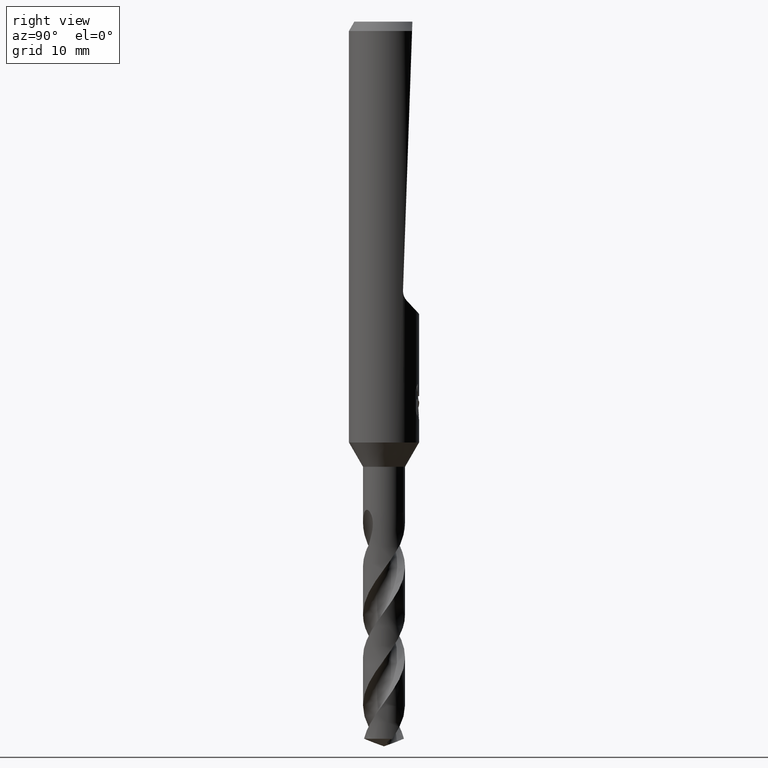
[diagram: clean part render]
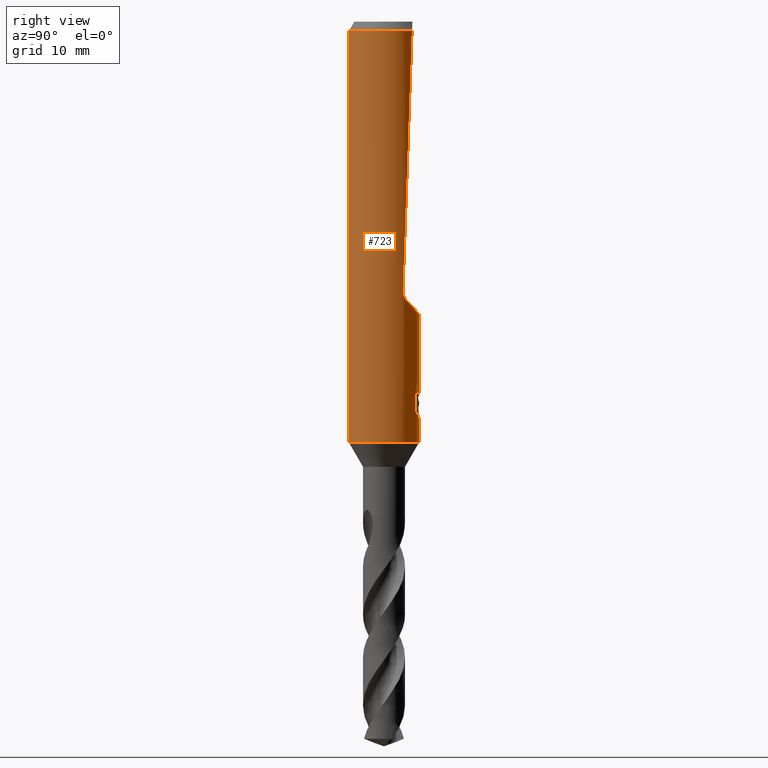
[diagram: same view with one face highlighted and labeled with its STEP entity id]
A machine part, right view. The second image highlights one B-rep face of the part: STEP entity #723.
In plain terms, the highlighted cylindrical surface (edge-blend (fillet) strip) has radius 3 mm, axis along (-0, -0, 1).
Its self-contained STEP definition (entity closure, byte-faithful):
#293=EDGE_CURVE('',#601,#735,#825,.T.);
#295=EDGE_CURVE('',#685,#455,#827,.T.);
#381=VERTEX_POINT('',#926);
#415=EDGE_CURVE('',#735,#611,#963,.T.);
#421=EDGE_CURVE('',#455,#493,#969,.T.);
#455=VERTEX_POINT('',#1008);
#493=VERTEX_POINT('',#1049);
#549=EDGE_CURVE('',#611,#559,#1108,.T.);
#559=VERTEX_POINT('',#1119);
#569=EDGE_CURVE('',#381,#719,#1130,.T.);
#601=VERTEX_POINT('',#1163);
#607=VERTEX_POINT('',#1169);
#611=VERTEX_POINT('',#1173);
#619=EDGE_CURVE('',#721,#739,#1181,.T.);
#631=EDGE_CURVE('',#559,#751,#1194,.T.);
#679=EDGE_CURVE('',#381,#713,#1248,.T.);
#685=VERTEX_POINT('',#1255);
#687=EDGE_CURVE('',#739,#761,#1257,.T.);
#713=VERTEX_POINT('',#1284);
#715=EDGE_CURVE('',#761,#685,#1286,.T.);
#719=VERTEX_POINT('',#1290);
#721=VERTEX_POINT('',#1292);
#723=ADVANCED_FACE('',(#1294),#1295,.T.);
#725=EDGE_CURVE('',#713,#607,#1297,.T.);
#735=VERTEX_POINT('',#1307);
#737=EDGE_CURVE('',#607,#751,#1309,.T.);
#739=VERTEX_POINT('',#1311);
#751=VERTEX_POINT('',#1325);
#761=VERTEX_POINT('',#1336);
#793=EDGE_CURVE('',#601,#493,#1371,.T.);
#799=EDGE_CURVE('',#719,#721,#1377,.T.);
#825=ELLIPSE('',#1978,4.39883755691887,3.0);
#827=B_SPLINE_CURVE_WITH_KNOTS('',3,(#1981,#1982,#1983,#1984,#1985,#1986,#1987,#1988),.UNSPECIFIED.,.F.,.F.,(4,2,2,4),(0.629580638580865,1.25916127716173,1.57221094126725,1.88526060537277),.UNSPECIFIED.);
#926=CARTESIAN_POINT('',(-2.46407913303377E-016,3.0,-34.0310253601033));
#963=B_SPLINE_CURVE_WITH_KNOTS('',3,(#2801,#2802,#2803,#2804,#2805,#2806,#2807,#2808,#2809,#2810,#2811,#2812),.UNSPECIFIED.,.F.,.F.,(4,2,2,2,2,4),(9.65639576015631,9.92366870863066,10.190941657105,10.4582146055794,10.7254875540537,10.9927605025281),.UNSPECIFIED.);
#969=B_SPLINE_CURVE_WITH_KNOTS('',3,(#2822,#2823,#2824,#2825,#2826,#2827,#2828,#2829,#2830,#2831,#2832,#2833,#2834,#2835,#2836,#2837,#2838,#2839,#2840,#2841,#2842,#2843,#2844,#2845,#2846,#2847,#2848),.UNSPECIFIED.,.F.,.F.,(4,2,3,2,2,2,2,2,2,2,2,2,4),(-0.54422824842136,-0.27211412421068,0.0,0.272114124210678,0.544228248421357,0.817906359646673,1.09158447087199,1.36255924571499,1.63353402055798,1.90530456554772,2.17707511053746,2.4488456555272,2.72061620051693),.UNSPECIFIED.);
#1008=CARTESIAN_POINT('',(0.799431726384364,2.89152363207533,-31.000000276873));
#1049=CARTESIAN_POINT('',(-1.20768269592175E-015,3.0,-32.0232688117743));
#1108=ELLIPSE('',#3501,85.9611250435315,3.0);
#1119=CARTESIAN_POINT('',(1.79915003951659,2.40063723525806,-0.799999999999997));
#1130=B_SPLINE_CURVE_WITH_KNOTS('',3,(#3559,#3560,#3561,#3562,#3563,#3564,#3565,#3566,#3567,#3568,#3569,#3570,#3571,#3572,#3573,#3574),.UNSPECIFIED.,.F.,.F.,(4,2,2,2,2,2,2,4),(5.66023402257373,6.29060333517104,6.60504483258975,6.91948633000846,7.23392782742717,7.54836932484587,7.86141901111221,8.17446869737855),.UNSPECIFIED.);
#1163=CARTESIAN_POINT('',(-3.67381906146713E-016,3.0,-25.0009117563346));
#1169=CARTESIAN_POINT('',(3.67381906146713E-016,-3.0,-36.0));
#1173=CARTESIAN_POINT('',(2.52177371746177,1.62500994394466,-23.0110595671924));
#1181=LINE('',#3713,#3714);
#1194=CIRCLE('',#3820,3.0);
#1248=LINE('',#4521,#4522);
#1255=CARTESIAN_POINT('',(1.33721006514658,2.68549236485057,-31.5150484364821));
#1257=B_SPLINE_CURVE_WITH_KNOTS('',3,(#4532,#4533,#4534,#4535,#4536,#4537,#4538,#4539),.UNSPECIFIED.,.F.,.F.,(4,2,2,4),(8.17446522132897,8.48751487521068,8.80056452909238,9.43014514523744),.UNSPECIFIED.);
#1284=CARTESIAN_POINT('',(0.0,3.0,-36.0));
#1286=LINE('',#4690,#4691);
#1290=CARTESIAN_POINT('',(0.29010312703583,2.98594041730307,-33.9998328990228));
#1292=CARTESIAN_POINT('',(0.873560781758957,2.86999852971612,-32.3198931596091));
#1294=FACE_OUTER_BOUND('',#4791,.T.);
#1295=CYLINDRICAL_SURFACE('',#4792,3.0);
#1297=CIRCLE('',#4795,3.0);
#1307=CARTESIAN_POINT('',(2.2826599132014,1.94665449442457,-23.8713369953104));
#1309=LINE('',#4833,#4834);
#1311=CARTESIAN_POINT('',(0.873560781758956,2.86999852971612,-33.7587351791531));
#1325=CARTESIAN_POINT('',(3.67381906146713E-016,-3.0,-0.799999999999997));
#1336=CARTESIAN_POINT('',(1.33721006514658,2.68549236485056,-33.2901657003257));
#1371=LINE('',#5359,#5360);
#1377=ELLIPSE('',#5369,9.14398372010932,3.0);
#1978=AXIS2_PLACEMENT_3D('',#5380,#5381,#5382);
#1981=CARTESIAN_POINT('',(1.47371594887933,2.61307506628086,-31.7730763684241));
#1982=CARTESIAN_POINT('',(1.38997410067862,2.66030349611674,-31.5732652606136));
#1983=CARTESIAN_POINT('',(1.2654392594963,2.72440179761724,-31.3929794688919));
#1984=CARTESIAN_POINT('',(1.05168354029617,2.81066216411606,-31.1794481382038));
#1985=CARTESIAN_POINT('',(0.971352579549231,2.83988055521709,-31.1125077441098));
#1986=CARTESIAN_POINT('',(0.795685568183073,2.89401656493242,-30.9938021282019));
#1987=CARTESIAN_POINT('',(0.700343019183212,2.91889351702519,-30.9420279807093));
#1988=CARTESIAN_POINT('',(0.600330681290245,2.93932017192779,-30.9001776926585));
#2801=CARTESIAN_POINT('',(2.1993251643641,2.0403354678569,-23.961472197729));
#2802=CARTESIAN_POINT('',(2.25053184097059,1.98513859743127,-23.9138446323197));
#2803=CARTESIAN_POINT('',(2.29788287508865,1.92976722949031,-23.8571075060433));
#2804=CARTESIAN_POINT('',(2.37970549766852,1.82791383934016,-23.7268045582116));
#2805=CARTESIAN_POINT('',(2.41423408090567,1.78148417509052,-23.6532336111416));
#2806=CARTESIAN_POINT('',(2.46888600291622,1.7049378084188,-23.4943584779312));
#2807=CARTESIAN_POINT('',(2.48916425834033,1.67470764776135,-23.408819725842));
#2808=CARTESIAN_POINT('',(2.51582947593657,1.63437647323784,-23.2326537242643));
#2809=CARTESIAN_POINT('',(2.52224462272648,1.62427893636757,-23.1420299460602));
#2810=CARTESIAN_POINT('',(2.52224462272648,1.62427893636757,-22.9638479804106));
#2811=CARTESIAN_POINT('',(2.51582947593657,1.63437647323784,-22.8732242022064));
#2812=CARTESIAN_POINT('',(2.50249686713845,1.65454206049959,-22.7851412014176));
#2822=CARTESIAN_POINT('',(0.665621182276714,2.92522622060321,-30.8140957881762));
#2823=CARTESIAN_POINT('',(0.728850563417096,2.91083867849353,-30.877518087557));
#2824=CARTESIAN_POINT('',(0.783900459387161,2.89602337967411,-30.9578702196133));
#2825=CARTESIAN_POINT('',(0.857188692916628,2.87518328740958,-31.1345580124299));
#2826=CARTESIAN_POINT('',(0.875400981188567,2.86943777108584,-31.2309373045166));
#2827=CARTESIAN_POINT('',(0.875400981188567,2.86943777108584,-31.3216420125868));
#2828=CARTESIAN_POINT('',(0.875400981188567,2.86943777108584,-31.412346720657));
#2829=CARTESIAN_POINT('',(0.857188692916629,2.87518328740958,-31.5087260127437));
#2830=CARTESIAN_POINT('',(0.783900459387161,2.89602337967411,-31.6854138055602));
#2831=CARTESIAN_POINT('',(0.728850563417096,2.91083867849353,-31.7657659376165));
#2832=CARTESIAN_POINT('',(0.60202838769231,2.93969645569731,-31.8929750586276));
#2833=CARTESIAN_POINT('',(0.5214778595293,2.95568533572518,-31.9483797636259));
#2834=CARTESIAN_POINT('',(0.34429909105015,2.98152194310932,-32.0221641076746));
#2835=CARTESIAN_POINT('',(0.247628172090375,2.99115403786358,-32.0405166027747));
#2836=CARTESIAN_POINT('',(0.0663244946631877,3.00062654348629,-32.0405166027747));
#2837=CARTESIAN_POINT('',(-0.0299285908853379,3.00115720326599,-32.0224875186921));
#2838=CARTESIAN_POINT('',(-0.206881310600538,2.99416773126077,-31.949244373347));
#2839=CARTESIAN_POINT('',(-0.287593937381961,2.98687212067831,-31.8940404490632));
#2840=CARTESIAN_POINT('',(-0.415200117492864,2.97182576996222,-31.7666805419979));
#2841=CARTESIAN_POINT('',(-0.470604049431396,2.96309385107775,-31.6859121102136));
#2842=CARTESIAN_POINT('',(-0.544183869965539,2.95046729924835,-31.5086992019516));
#2843=CARTESIAN_POINT('',(-0.562348199187247,2.94682278104247,-31.41223219425));
#2844=CARTESIAN_POINT('',(-0.562348199187247,2.94682278104247,-31.2310518309235));
#2845=CARTESIAN_POINT('',(-0.54418386996554,2.95046729924835,-31.134584823222));
#2846=CARTESIAN_POINT('',(-0.4706040494314,2.96309385107775,-30.95737191496));
#2847=CARTESIAN_POINT('',(-0.415200117492863,2.97182576996222,-30.8766034831756));
#2848=CARTESIAN_POINT('',(-0.351303479704285,2.97935997575782,-30.812830162452));
#3501=AXIS2_PLACEMENT_3D('',#5742,#5743,#5744);
#3559=CARTESIAN_POINT('',(-1.53050642192579,2.58022287650581,-33.0319811255889));
#3560=CARTESIAN_POINT('',(-1.44691631248335,2.62980577312329,-33.2314887010961));
#3561=CARTESIAN_POINT('',(-1.32276760444366,2.69707077181617,-33.4113258593841));
#3562=CARTESIAN_POINT('',(-1.10973155101076,2.78826898930335,-33.6245951706909));
#3563=CARTESIAN_POINT('',(-1.02948996220254,2.81934349084513,-33.6916117853674));
#3564=CARTESIAN_POINT('',(-0.853932698223484,2.87738531454781,-33.8105216600777));
#3565=CARTESIAN_POINT('',(-0.758609991487907,2.90431263574779,-33.8624240602539));
#3566=CARTESIAN_POINT('',(-0.558469552260235,2.94934446690523,-33.9464055954533));
#3567=CARTESIAN_POINT('',(-0.453457041446381,2.96746268462387,-33.9785511641911));
#3568=CARTESIAN_POINT('',(-0.240810292537893,2.99223469602914,-34.0209924679526));
#3569=CARTESIAN_POINT('',(-0.133171317626829,2.99887501234033,-34.0312723335086));
#3570=CARTESIAN_POINT('',(0.0759830626177195,3.00085245803086,-34.0312723335086));
#3571=CARTESIAN_POINT('',(0.183273473896684,2.99629272230549,-34.0210815541729));
#3572=CARTESIAN_POINT('',(0.39543915272815,2.97573303917486,-33.9788816901513));
#3573=CARTESIAN_POINT('',(0.500318639064909,2.95974677710468,-33.9468871509919));
#3574=CARTESIAN_POINT('',(0.600330982089903,2.93932011049205,-33.9050368602192));
#3713=CARTESIAN_POINT('',(0.873560781758957,2.86999852971612,-33.0393141693811));
#3714=VECTOR('',#5788,1.0);
#3820=AXIS2_PLACEMENT_3D('',#5797,#5798,#5799);
#4521=CARTESIAN_POINT('',(-3.67381906146713E-016,3.0,-18.4));
#4522=VECTOR('',#5859,1.0);
#4532=CARTESIAN_POINT('',(0.600330703923335,2.93932016730517,-33.9050364278969));
#4533=CARTESIAN_POINT('',(0.700343038443484,2.91889351228921,-33.8631861412044));
#4534=CARTESIAN_POINT('',(0.795685584213131,2.8940165604303,-33.8114119954011));
#4535=CARTESIAN_POINT('',(0.971352589628262,2.83988055167306,-33.692706383359));
#4536=CARTESIAN_POINT('',(1.0516835476539,2.81066216129401,-33.6257659914415));
#4537=CARTESIAN_POINT('',(1.26543925920527,2.72440179743877,-33.4122346680481));
#4538=CARTESIAN_POINT('',(1.3899740959159,2.66030349847411,-33.2319488826214));
#4539=CARTESIAN_POINT('',(1.47371594109741,2.61307507066968,-33.0321377817991));
#4690=CARTESIAN_POINT('',(1.33721006514658,2.68549236485056,-32.4026070684039));
#4691=VECTOR('',#5895,1.0);
#4791=EDGE_LOOP('',(#5897,#5898,#5899,#5900,#5901,#5902,#5903,#5904,#5905,#5906,#5907,#5908,#5909,#5910,#5911));
#4792=AXIS2_PLACEMENT_3D('',#5912,#5913,#5914);
#4795=AXIS2_PLACEMENT_3D('',#5915,#5916,#5917);
#4833=CARTESIAN_POINT('',(3.67381906146713E-016,-3.0,-18.4));
#4834=VECTOR('',#5921,1.0);
#5359=CARTESIAN_POINT('',(-3.67381906146713E-016,3.0,-18.4));
#5360=VECTOR('',#5990,1.0);
#5369=AXIS2_PLACEMENT_3D('',#5992,#5993,#5994);
#5380=CARTESIAN_POINT('',(0.0,0.0,-21.7838056262606));
#5381=DIRECTION('',(0.0,-0.731353701619171,-0.681998360062499));
#5382=DIRECTION('',(0.0,0.681998360062499,-0.731353701619171));
#5742=CARTESIAN_POINT('',(0.0,0.0,-69.5452559092481));
#5743=DIRECTION('',(0.0,-0.999390827019096,0.0348994967025009));
#5744=DIRECTION('',(0.0,0.0348994967025009,0.999390827019096));
#5788=DIRECTION('',(0.0,0.0,-1.0));
#5797=CARTESIAN_POINT('',(0.0,0.0,-0.799999999999997));
#5798=DIRECTION('',(0.0,0.0,-1.0));
#5799=DIRECTION('',(0.0,1.0,0.0));
#5859=DIRECTION('',(0.0,0.0,-1.0));
#5895=DIRECTION('',(-0.0,-0.0,1.0));
#5897=ORIENTED_EDGE('',*,*,#793,.F.);
#5898=ORIENTED_EDGE('',*,*,#293,.T.);
#5899=ORIENTED_EDGE('',*,*,#415,.T.);
#5900=ORIENTED_EDGE('',*,*,#549,.T.);
#5901=ORIENTED_EDGE('',*,*,#631,.T.);
#5902=ORIENTED_EDGE('',*,*,#737,.F.);
#5903=ORIENTED_EDGE('',*,*,#725,.F.);
#5904=ORIENTED_EDGE('',*,*,#679,.F.);
#5905=ORIENTED_EDGE('',*,*,#569,.T.);
#5906=ORIENTED_EDGE('',*,*,#799,.T.);
#5907=ORIENTED_EDGE('',*,*,#619,.T.);
#5908=ORIENTED_EDGE('',*,*,#687,.T.);
#5909=ORIENTED_EDGE('',*,*,#715,.T.);
#5910=ORIENTED_EDGE('',*,*,#295,.T.);
#5911=ORIENTED_EDGE('',*,*,#421,.T.);
#5912=CARTESIAN_POINT('',(0.0,0.0,-18.4));
#5913=DIRECTION('',(-0.0,-0.0,1.0));
#5914=DIRECTION('',(0.0,1.0,0.0));
#5915=CARTESIAN_POINT('',(0.0,0.0,-36.0));
#5916=DIRECTION('',(0.0,0.0,-1.0));
#5917=DIRECTION('',(0.0,1.0,0.0));
#5921=DIRECTION('',(-0.0,-0.0,1.0));
#5990=DIRECTION('',(0.0,0.0,-1.0));
#5992=CARTESIAN_POINT('',(0.0,0.0,-34.8351219173269));
#5993=DIRECTION('',(0.944648353914092,0.0,-0.328084573619969));
#5994=DIRECTION('',(0.328084573619969,-0.0,0.944648353914092));